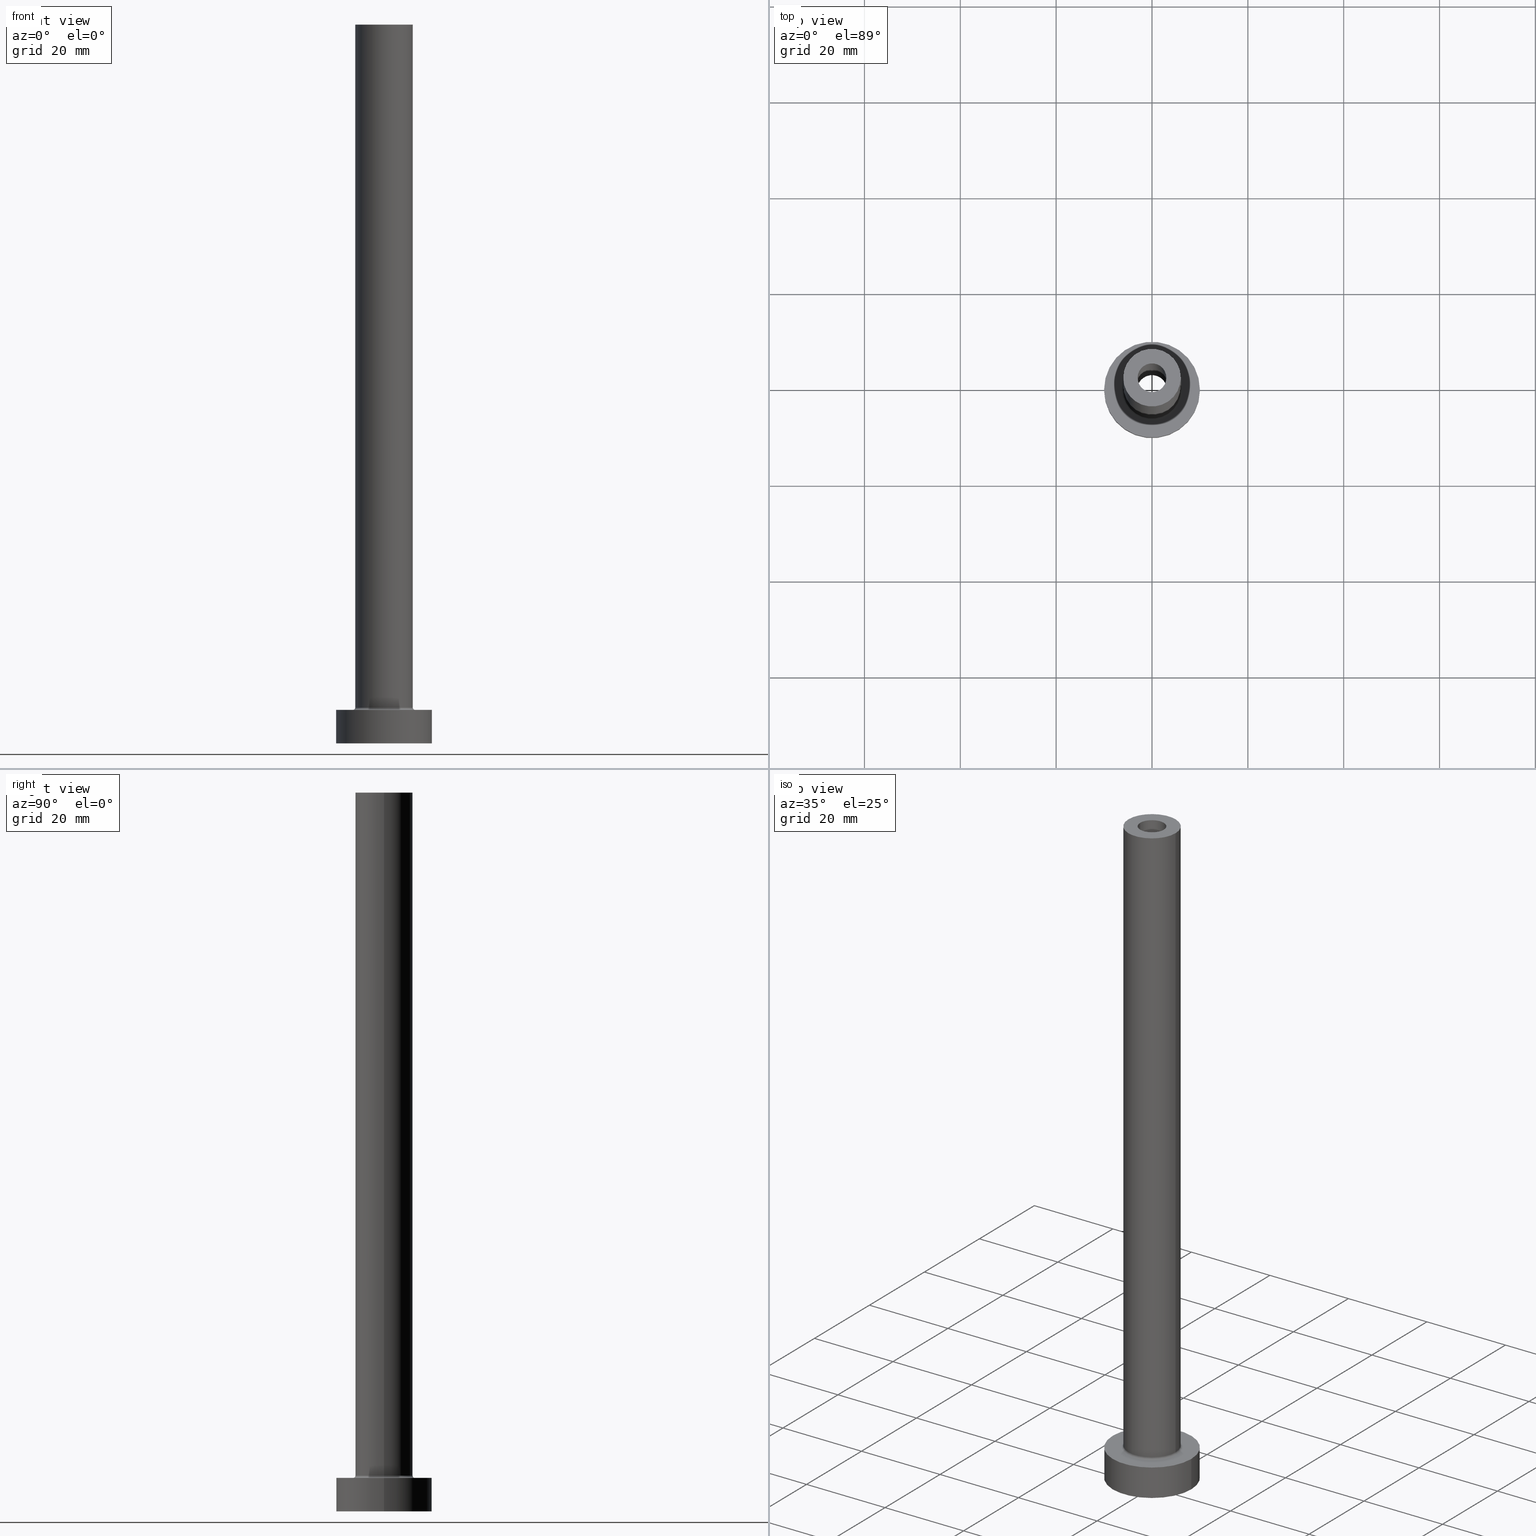
[diagram: canonical four-view strip — front | top / right | iso, engineering-drawing reading convention]
A machine part, canonical four-view strip (front | top / right | iso — engineering-drawing reading convention). The complete STEP part file that produces these views, byte-faithful:
ISO-10303-21;
HEADER;
FILE_DESCRIPTION (( 'STEP AP203' ),
    '1' );
FILE_NAME ('92c2.STEP',
    '2023-02-13T15:02:27',
    ( '' ),
    ( '' ),
    'SwSTEP 2.0',
    'SolidWorks 2019',
    '' );
FILE_SCHEMA (( 'CONFIG_CONTROL_DESIGN' ));
ENDSEC;

DATA;
#1 = ORIENTED_EDGE ( 'NONE', *, *, #417, .T. ) ;
#2 = EDGE_CURVE ( 'NONE', #17, #24, #199, .T. ) ;
#3 = CARTESIAN_POINT ( 'NONE',  ( 0.000000000000000000, 0.000000000000000000, 150.0000000000000000 ) ) ;
#4 = AXIS2_PLACEMENT_3D ( 'NONE', #210, #75, #453 ) ;
#5 = AXIS2_PLACEMENT_3D ( 'NONE', #127, #331, #120 ) ;
#6 = PLANE ( 'NONE',  #68 ) ;
#7 = ADVANCED_FACE ( 'NONE', ( #183 ), #149, .T. ) ;
#8 = ORIENTED_EDGE ( 'NONE', *, *, #178, .T. ) ;
#9 = FACE_OUTER_BOUND ( 'NONE', #53, .T. ) ;
#10 = EDGE_CURVE ( 'NONE', #397, #441, #392, .T. ) ;
#11 = CIRCLE ( 'NONE', #275, 6.000000000000000888 ) ;
#12 = PRODUCT ( '92c2', '92c2', '', ( #98 ) ) ;
#13 =( GEOMETRIC_REPRESENTATION_CONTEXT ( 3 ) GLOBAL_UNCERTAINTY_ASSIGNED_CONTEXT ( ( #192 ) ) GLOBAL_UNIT_ASSIGNED_CONTEXT ( ( #64, #411, #344 ) ) REPRESENTATION_CONTEXT ( 'NONE', 'WORKASPACE' ) );
#14 = ORIENTED_EDGE ( 'NONE', *, *, #104, .T. ) ;
#15 = CALENDAR_DATE ( 2023, 13, 2 ) ;
#16 = DIRECTION ( 'NONE',  ( 0.000000000000000000, 0.000000000000000000, 1.000000000000000000 ) ) ;
#17 = VERTEX_POINT ( 'NONE', #294 ) ;
#18 = EDGE_CURVE ( 'NONE', #21, #195, #239, .T. ) ;
#19 = COORDINATED_UNIVERSAL_TIME_OFFSET ( 1, 0, .AHEAD. ) ;
#20 = LINE ( 'NONE', #349, #119 ) ;
#21 = VERTEX_POINT ( 'NONE', #424 ) ;
#22 = AXIS2_PLACEMENT_3D ( 'NONE', #391, #291, #212 ) ;
#23 = CIRCLE ( 'NONE', #93, 3.000000000000000444 ) ;
#24 = VERTEX_POINT ( 'NONE', #247 ) ;
#25 = LOCAL_TIME ( 16, 2, 27.00000000000000000, #19 ) ;
#26 = EDGE_LOOP ( 'NONE', ( #303, #139, #202, #125 ) ) ;
#27 = PERSON_AND_ORGANIZATION ( #155, #328 ) ;
#28 = DIRECTION ( 'NONE',  ( 1.000000000000000000, 0.000000000000000000, -0.000000000000000000 ) ) ;
#29 = ADVANCED_FACE ( 'NONE', ( #108, #118 ), #30, .F. ) ;
#30 = PLANE ( 'NONE',  #320 ) ;
#31 = PERSON_AND_ORGANIZATION_ROLE ( 'creator' ) ;
#32 = DIRECTION ( 'NONE',  ( -0.000000000000000000, -0.000000000000000000, -1.000000000000000000 ) ) ;
#33 = ORIENTED_EDGE ( 'NONE', *, *, #2, .F. ) ;
#34 = AXIS2_PLACEMENT_3D ( 'NONE', #286, #38, #283 ) ;
#35 = CARTESIAN_POINT ( 'NONE',  ( 0.000000000000000000, 0.000000000000000000, 105.0000000000000000 ) ) ;
#36 = SECURITY_CLASSIFICATION ( '', '', #184 ) ;
#37 = PERSON_AND_ORGANIZATION ( #155, #328 ) ;
#38 = DIRECTION ( 'NONE',  ( -0.000000000000000000, -0.000000000000000000, -1.000000000000000000 ) ) ;
#39 = DIRECTION ( 'NONE',  ( 0.000000000000000000, -1.000000000000000000, 0.000000000000000000 ) ) ;
#40 = FACE_OUTER_BOUND ( 'NONE', #186, .T. ) ;
#41 = APPLICATION_CONTEXT ( 'configuration controlled 3d designs of mechanical parts and assemblies' ) ;
#42 = DIRECTION ( 'NONE',  ( 0.000000000000000000, 0.000000000000000000, -1.000000000000000000 ) ) ;
#43 = FACE_BOUND ( 'NONE', #228, .T. ) ;
#44 = CIRCLE ( 'NONE', #232, 6.500000000000000888 ) ;
#45 = VECTOR ( 'NONE', #442, 1000.000000000000000 ) ;
#46 = CYLINDRICAL_SURFACE ( 'NONE', #134, 3.150000000000000355 ) ;
#47 = DESIGN_CONTEXT ( 'detailed design', #207, 'design' ) ;
#48 = ORIENTED_EDGE ( 'NONE', *, *, #10, .T. ) ;
#49 = ADVANCED_FACE ( 'NONE', ( #322 ), #80, .F. ) ;
#50 = DIRECTION ( 'NONE',  ( 0.000000000000000000, 0.000000000000000000, 1.000000000000000000 ) ) ;
#51 = ORIENTED_EDGE ( 'NONE', *, *, #278, .T. ) ;
#52 = CARTESIAN_POINT ( 'NONE',  ( 0.000000000000000000, 0.000000000000000000, 150.0000000000000000 ) ) ;
#53 = EDGE_LOOP ( 'NONE', ( #48, #401 ) ) ;
#54 = EDGE_LOOP ( 'NONE', ( #33, #129, #8, #306 ) ) ;
#55 = APPROVAL_STATUS ( 'not_yet_approved' ) ;
#56 = AXIS2_PLACEMENT_3D ( 'NONE', #347, #60, #177 ) ;
#57 = DIRECTION ( 'NONE',  ( -0.000000000000000000, -0.000000000000000000, -1.000000000000000000 ) ) ;
#58 = VERTEX_POINT ( 'NONE', #115 ) ;
#59 = EDGE_CURVE ( 'NONE', #231, #73, #148, .T. ) ;
#60 = DIRECTION ( 'NONE',  ( 0.000000000000000000, 0.000000000000000000, 1.000000000000000000 ) ) ;
#61 = ORIENTED_EDGE ( 'NONE', *, *, #432, .F. ) ;
#62 = VECTOR ( 'NONE', #243, 1000.000000000000000 ) ;
#63 = FACE_OUTER_BOUND ( 'NONE', #437, .T. ) ;
#64 =( LENGTH_UNIT ( ) NAMED_UNIT ( * ) SI_UNIT ( .MILLI., .METRE. ) );
#65 = DIRECTION ( 'NONE',  ( 0.000000000000000000, 0.000000000000000000, 1.000000000000000000 ) ) ;
#66 = CLOSED_SHELL ( 'NONE', ( #346, #107, #403, #273, #225, #116, #262, #29, #7, #128, #169, #92, #383, #49 ) ) ;
#67 = AXIS2_PLACEMENT_3D ( 'NONE', #142, #181, #151 ) ;
#68 = AXIS2_PLACEMENT_3D ( 'NONE', #297, #221, #78 ) ;
#69 = CARTESIAN_POINT ( 'NONE',  ( -3.000000000000000444, 0.000000000000000000, 150.0000000000000000 ) ) ;
#70 = APPROVAL_DATE_TIME ( #152, #102 ) ;
#71 = CARTESIAN_POINT ( 'NONE',  ( 0.000000000000000000, 0.000000000000000000, 7.500000000000007105 ) ) ;
#72 = DIRECTION ( 'NONE',  ( -1.000000000000000000, 1.224646799147351482E-16, 0.000000000000000000 ) ) ;
#73 = VERTEX_POINT ( 'NONE', #242 ) ;
#74 = DIRECTION ( 'NONE',  ( -1.000000000000000000, 0.000000000000000000, 0.000000000000000000 ) ) ;
#75 = DIRECTION ( 'NONE',  ( -0.000000000000000000, -0.000000000000000000, -1.000000000000000000 ) ) ;
#76 = VECTOR ( 'NONE', #456, 1000.000000000000000 ) ;
#77 = CC_DESIGN_SECURITY_CLASSIFICATION ( #36, ( #110 ) ) ;
#78 = DIRECTION ( 'NONE',  ( 1.000000000000000000, 0.000000000000000000, -0.000000000000000000 ) ) ;
#79 = EDGE_CURVE ( 'NONE', #21, #58, #379, .T. ) ;
#80 = CYLINDRICAL_SURFACE ( 'NONE', #421, 3.000000000000000444 ) ;
#81 = FACE_OUTER_BOUND ( 'NONE', #197, .T. ) ;
#82 = ORIENTED_EDGE ( 'NONE', *, *, #96, .T. ) ;
#83 = AXIS2_PLACEMENT_3D ( 'NONE', #71, #230, #444 ) ;
#84 = DIRECTION ( 'NONE',  ( 0.000000000000000000, 0.000000000000000000, 1.000000000000000000 ) ) ;
#85 = VERTEX_POINT ( 'NONE', #400 ) ;
#86 = ORIENTED_EDGE ( 'NONE', *, *, #180, .T. ) ;
#87 = PERSON_AND_ORGANIZATION_ROLE ( 'design_owner' ) ;
#88 = DIRECTION ( 'NONE',  ( 0.000000000000000000, 0.000000000000000000, -1.000000000000000000 ) ) ;
#89 = EDGE_CURVE ( 'NONE', #17, #198, #156, .T. ) ;
#90 = ORIENTED_EDGE ( 'NONE', *, *, #222, .F. ) ;
#91 = DIRECTION ( 'NONE',  ( 1.000000000000000000, 0.000000000000000000, 0.000000000000000000 ) ) ;
#92 = ADVANCED_FACE ( 'NONE', ( #300 ), #46, .F. ) ;
#93 = AXIS2_PLACEMENT_3D ( 'NONE', #52, #196, #260 ) ;
#94 = LOCAL_TIME ( 16, 2, 27.00000000000000000, #377 ) ;
#95 = CARTESIAN_POINT ( 'NONE',  ( 0.000000000000000000, 0.000000000000000000, 7.000000000000000000 ) ) ;
#96 = EDGE_CURVE ( 'NONE', #176, #307, #23, .T. ) ;
#97 = ORIENTED_EDGE ( 'NONE', *, *, #417, .F. ) ;
#98 = MECHANICAL_CONTEXT ( 'NONE', #41, 'mechanical' ) ;
#99 = CC_DESIGN_PERSON_AND_ORGANIZATION_ASSIGNMENT ( #27, #460, ( #36 ) ) ;
#100 = DIRECTION ( 'NONE',  ( -0.000000000000000000, -0.000000000000000000, -1.000000000000000000 ) ) ;
#101 = APPROVAL_ROLE ( '' ) ;
#102 = APPROVAL ( #288, 'NEUR�EN�' ) ;
#103 = ORIENTED_EDGE ( 'NONE', *, *, #341, .F. ) ;
#104 = EDGE_CURVE ( 'NONE', #321, #366, #219, .T. ) ;
#105 = AXIS2_PLACEMENT_3D ( 'NONE', #388, #32, #74 ) ;
#106 = CC_DESIGN_PERSON_AND_ORGANIZATION_ASSIGNMENT ( #356, #31, ( #110 ) ) ;
#107 = ADVANCED_FACE ( 'NONE', ( #396 ), #334, .F. ) ;
#108 = FACE_BOUND ( 'NONE', #418, .T. ) ;
#109 = CIRCLE ( 'NONE', #133, 10.00000000000000000 ) ;
#110 = PRODUCT_DEFINITION_FORMATION_WITH_SPECIFIED_SOURCE ( 'LIBOVOLN�', '', #12, .NOT_KNOWN. ) ;
#111 = DIRECTION ( 'NONE',  ( 1.000000000000000000, 0.000000000000000000, -0.000000000000000000 ) ) ;
#112 = EDGE_LOOP ( 'NONE', ( #314, #365 ) ) ;
#113 = CARTESIAN_POINT ( 'NONE',  ( 0.000000000000000000, 0.000000000000000000, 7.000000000000000000 ) ) ;
#114 = CARTESIAN_POINT ( 'NONE',  ( 0.000000000000000000, 0.000000000000000000, 7.000000000000000000 ) ) ;
#115 = CARTESIAN_POINT ( 'NONE',  ( -6.500000000000000888, 7.960204194457796463E-16, 7.000000000000002665 ) ) ;
#116 = ADVANCED_FACE ( 'NONE', ( #81 ), #435, .T. ) ;
#117 = EDGE_CURVE ( 'NONE', #195, #21, #450, .T. ) ;
#118 = FACE_OUTER_BOUND ( 'NONE', #363, .T. ) ;
#119 = VECTOR ( 'NONE', #285, 1000.000000000000000 ) ;
#120 = DIRECTION ( 'NONE',  ( 1.000000000000000000, 0.000000000000000000, 0.000000000000000000 ) ) ;
#121 = FACE_BOUND ( 'NONE', #112, .T. ) ;
#122 = DIRECTION ( 'NONE',  ( -1.000000000000000000, 0.000000000000000000, 0.000000000000000000 ) ) ;
#123 = ORIENTED_EDGE ( 'NONE', *, *, #259, .F. ) ;
#124 = DIRECTION ( 'NONE',  ( -0.000000000000000000, -0.000000000000000000, -1.000000000000000000 ) ) ;
#125 = ORIENTED_EDGE ( 'NONE', *, *, #180, .F. ) ;
#126 = AXIS2_PLACEMENT_3D ( 'NONE', #358, #124, #264 ) ;
#127 = CARTESIAN_POINT ( 'NONE',  ( 0.000000000000000000, 0.000000000000000000, 7.500000000000007105 ) ) ;
#128 = ADVANCED_FACE ( 'NONE', ( #121, #9 ), #342, .T. ) ;
#129 = ORIENTED_EDGE ( 'NONE', *, *, #89, .T. ) ;
#130 = CARTESIAN_POINT ( 'NONE',  ( 0.000000000000000000, 0.000000000000000000, 0.000000000000000000 ) ) ;
#131 = ADVANCED_BREP_SHAPE_REPRESENTATION ( '92c2', ( #360, #305 ), #13 ) ;
#132 = APPROVAL ( #398, 'NEUR�EN�' ) ;
#133 = AXIS2_PLACEMENT_3D ( 'NONE', #113, #318, #382 ) ;
#134 = AXIS2_PLACEMENT_3D ( 'NONE', #226, #404, #122 ) ;
#135 = APPROVAL_DATE_TIME ( #236, #325 ) ;
#136 = LOCAL_TIME ( 16, 2, 27.00000000000000000, #188 ) ;
#137 = APPLICATION_PROTOCOL_DEFINITION ( 'international standard', 'config_control_design', 1994, #207 ) ;
#138 = DIRECTION ( 'NONE',  ( 1.000000000000000000, 0.000000000000000000, 0.000000000000000000 ) ) ;
#139 = ORIENTED_EDGE ( 'NONE', *, *, #258, .T. ) ;
#140 = AXIS2_PLACEMENT_3D ( 'NONE', #245, #386, #72 ) ;
#141 = EDGE_CURVE ( 'NONE', #441, #195, #235, .T. ) ;
#142 = CARTESIAN_POINT ( 'NONE',  ( 0.000000000000000000, 0.000000000000000000, 150.0000000000000000 ) ) ;
#143 = DIRECTION ( 'NONE',  ( 1.000000000000000000, 0.000000000000000000, 0.000000000000000000 ) ) ;
#144 = DIRECTION ( 'NONE',  ( 0.000000000000000000, 0.000000000000000000, -1.000000000000000000 ) ) ;
#145 = CARTESIAN_POINT ( 'NONE',  ( -10.00000000000000000, 0.000000000000000000, 7.000000000000000000 ) ) ;
#146 = PERSON_AND_ORGANIZATION_ROLE ( 'design_supplier' ) ;
#147 = CARTESIAN_POINT ( 'NONE',  ( 10.00000000000000000, 1.224646799147353256E-15, 0.000000000000000000 ) ) ;
#148 = CIRCLE ( 'NONE', #34, 3.150000000000000355 ) ;
#149 = CYLINDRICAL_SURFACE ( 'NONE', #4, 6.000000000000000888 ) ;
#150 = COORDINATED_UNIVERSAL_TIME_OFFSET ( 1, 0, .AHEAD. ) ;
#151 = DIRECTION ( 'NONE',  ( 1.000000000000000000, 0.000000000000000000, 0.000000000000000000 ) ) ;
#152 = DATE_AND_TIME ( #329, #136 ) ;
#153 = DIRECTION ( 'NONE',  ( 0.000000000000000000, 0.000000000000000000, 1.000000000000000000 ) ) ;
#154 = ORIENTED_EDGE ( 'NONE', *, *, #18, .T. ) ;
#155 = PERSON ( 'NEUR�EN�', 'NEUR�EN�', 'NEUR�EN�', ('NEUR�EN�'), ('NEUR�EN�'), ('NEUR�EN�') ) ;
#156 = LINE ( 'NONE', #434, #205 ) ;
#157 = CIRCLE ( 'NONE', #253, 3.000000000000000444 ) ;
#158 = DIRECTION ( 'NONE',  ( 0.000000000000000000, 0.000000000000000000, 1.000000000000000000 ) ) ;
#159 = CARTESIAN_POINT ( 'NONE',  ( -6.000000000000000888, 0.000000000000000000, 150.0000000000000000 ) ) ;
#160 = CARTESIAN_POINT ( 'NONE',  ( 0.000000000000000000, 0.000000000000000000, 113.9095454429505025 ) ) ;
#161 = ORIENTED_EDGE ( 'NONE', *, *, #89, .F. ) ;
#162 = VERTEX_POINT ( 'NONE', #446 ) ;
#163 = AXIS2_PLACEMENT_3D ( 'NONE', #319, #284, #292 ) ;
#164 = PRODUCT_DEFINITION_SHAPE ( 'NONE', 'NONE',  #448 ) ;
#165 = CC_DESIGN_APPROVAL ( #132, ( #110 ) ) ;
#166 = ORIENTED_EDGE ( 'NONE', *, *, #2, .T. ) ;
#167 = CARTESIAN_POINT ( 'NONE',  ( 0.000000000000000000, 0.000000000000000000, 105.0000000000000000 ) ) ;
#168 = ORIENTED_EDGE ( 'NONE', *, *, #402, .T. ) ;
#169 = ADVANCED_FACE ( 'NONE', ( #63 ), #214, .F. ) ;
#170 = CARTESIAN_POINT ( 'NONE',  ( 6.000000000000000888, 7.347880794884120722E-16, 150.0000000000000000 ) ) ;
#171 = ORIENTED_EDGE ( 'NONE', *, *, #254, .F. ) ;
#172 = ORIENTED_EDGE ( 'NONE', *, *, #282, .F. ) ;
#173 = CARTESIAN_POINT ( 'NONE',  ( 3.150000000000000355, 3.857637417314162196E-16, 105.0000000000000000 ) ) ;
#174 = ORIENTED_EDGE ( 'NONE', *, *, #10, .F. ) ;
#175 = CIRCLE ( 'NONE', #430, 3.000000000000000444 ) ;
#176 = VERTEX_POINT ( 'NONE', #375 ) ;
#177 = DIRECTION ( 'NONE',  ( 1.000000000000000000, 0.000000000000000000, 0.000000000000000000 ) ) ;
#178 = EDGE_CURVE ( 'NONE', #198, #409, #348, .T. ) ;
#179 = CIRCLE ( 'NONE', #263, 3.150000000000000355 ) ;
#180 = EDGE_CURVE ( 'NONE', #307, #321, #201, .T. ) ;
#181 = DIRECTION ( 'NONE',  ( 0.000000000000000000, 0.000000000000000000, 1.000000000000000000 ) ) ;
#182 = EDGE_CURVE ( 'NONE', #441, #397, #11, .T. ) ;
#183 = FACE_OUTER_BOUND ( 'NONE', #405, .T. ) ;
#184 = SECURITY_CLASSIFICATION_LEVEL ( 'unclassified' ) ;
#185 = AXIS2_PLACEMENT_3D ( 'NONE', #359, #42, #190 ) ;
#186 = EDGE_LOOP ( 'NONE', ( #316, #166 ) ) ;
#187 = CC_DESIGN_DATE_AND_TIME_ASSIGNMENT ( #438, #443, ( #448 ) ) ;
#188 = COORDINATED_UNIVERSAL_TIME_OFFSET ( 1, 0, .AHEAD. ) ;
#189 = FACE_OUTER_BOUND ( 'NONE', #256, .T. ) ;
#190 = DIRECTION ( 'NONE',  ( -1.000000000000000000, 0.000000000000000000, 0.000000000000000000 ) ) ;
#191 = AXIS2_PLACEMENT_3D ( 'NONE', #167, #50, #194 ) ;
#192 = UNCERTAINTY_MEASURE_WITH_UNIT (LENGTH_MEASURE( 1.000000000000000082E-05 ), #64, 'distance_accuracy_value', 'NONE');
#193 = LOCAL_TIME ( 16, 2, 27.00000000000000000, #150 ) ;
#194 = DIRECTION ( 'NONE',  ( 1.000000000000000000, 0.000000000000000000, 0.000000000000000000 ) ) ;
#195 = VERTEX_POINT ( 'NONE', #272 ) ;
#196 = DIRECTION ( 'NONE',  ( 0.000000000000000000, 0.000000000000000000, 1.000000000000000000 ) ) ;
#197 = EDGE_LOOP ( 'NONE', ( #161, #172, #223, #51 ) ) ;
#198 = VERTEX_POINT ( 'NONE', #147 ) ;
#199 = CIRCLE ( 'NONE', #22, 10.00000000000000000 ) ;
#200 = CALENDAR_DATE ( 2023, 13, 2 ) ;
#201 = LINE ( 'NONE', #324, #280 ) ;
#202 = ORIENTED_EDGE ( 'NONE', *, *, #104, .F. ) ;
#203 = CARTESIAN_POINT ( 'NONE',  ( 0.000000000000000000, 0.000000000000000000, 0.000000000000000000 ) ) ;
#204 = ORIENTED_EDGE ( 'NONE', *, *, #141, .F. ) ;
#205 = VECTOR ( 'NONE', #269, 1000.000000000000000 ) ;
#206 = DIRECTION ( 'NONE',  ( 1.000000000000000000, 0.000000000000000000, 0.000000000000000000 ) ) ;
#207 = APPLICATION_CONTEXT ( 'configuration controlled 3d designs of mechanical parts and assemblies' ) ;
#208 = VECTOR ( 'NONE', #100, 1000.000000000000000 ) ;
#209 = APPROVAL_PERSON_ORGANIZATION ( #268, #132, #353 ) ;
#210 = CARTESIAN_POINT ( 'NONE',  ( 0.000000000000000000, 0.000000000000000000, 150.0000000000000000 ) ) ;
#211 = SHAPE_DEFINITION_REPRESENTATION ( #164, #131 ) ;
#212 = DIRECTION ( 'NONE',  ( 1.000000000000000000, 0.000000000000000000, 0.000000000000000000 ) ) ;
#213 = CALENDAR_DATE ( 2023, 13, 2 ) ;
#214 = TOROIDAL_SURFACE ( 'NONE', #83, 6.500000000000000888, 0.5000000000000000000 ) ;
#215 = DIRECTION ( 'NONE',  ( 1.000000000000000000, 0.000000000000000000, 0.000000000000000000 ) ) ;
#216 = PLANE ( 'NONE',  #313 ) ;
#217 = CYLINDRICAL_SURFACE ( 'NONE', #185, 3.000000000000000444 ) ;
#218 = EDGE_CURVE ( 'NONE', #366, #321, #157, .T. ) ;
#219 = CIRCLE ( 'NONE', #191, 3.000000000000000444 ) ;
#220 = ORIENTED_EDGE ( 'NONE', *, *, #278, .F. ) ;
#221 = DIRECTION ( 'NONE',  ( 0.000000000000000000, 0.000000000000000000, 1.000000000000000000 ) ) ;
#222 = EDGE_CURVE ( 'NONE', #73, #231, #333, .T. ) ;
#223 = ORIENTED_EDGE ( 'NONE', *, *, #296, .T. ) ;
#224 = PERSON_AND_ORGANIZATION ( #155, #328 ) ;
#225 = ADVANCED_FACE ( 'NONE', ( #423 ), #410, .T. ) ;
#226 = CARTESIAN_POINT ( 'NONE',  ( 0.000000000000000000, 0.000000000000000000, 113.9095454429505025 ) ) ;
#227 = EDGE_LOOP ( 'NONE', ( #436, #376, #335, #351 ) ) ;
#228 = EDGE_LOOP ( 'NONE', ( #14, #343 ) ) ;
#229 = APPLICATION_PROTOCOL_DEFINITION ( 'international standard', 'config_control_design', 1994, #41 ) ;
#230 = DIRECTION ( 'NONE',  ( 0.000000000000000000, 0.000000000000000000, 1.000000000000000000 ) ) ;
#231 = VERTEX_POINT ( 'NONE', #378 ) ;
#232 = AXIS2_PLACEMENT_3D ( 'NONE', #95, #233, #206 ) ;
#233 = DIRECTION ( 'NONE',  ( -0.000000000000000000, -0.000000000000000000, -1.000000000000000000 ) ) ;
#234 = ORIENTED_EDGE ( 'NONE', *, *, #182, .F. ) ;
#235 = LINE ( 'NONE', #170, #415 ) ;
#236 = DATE_AND_TIME ( #200, #94 ) ;
#237 = CARTESIAN_POINT ( 'NONE',  ( 0.000000000000000000, 0.000000000000000000, 105.0000000000000000 ) ) ;
#238 = VERTEX_POINT ( 'NONE', #173 ) ;
#239 = CIRCLE ( 'NONE', #384, 6.000000000000000888 ) ;
#240 = CIRCLE ( 'NONE', #385, 0.5000000000000004441 ) ;
#241 = CC_DESIGN_PERSON_AND_ORGANIZATION_ASSIGNMENT ( #224, #340, ( #448 ) ) ;
#242 = CARTESIAN_POINT ( 'NONE',  ( -3.150000000000000355, 0.000000000000000000, 0.000000000000000000 ) ) ;
#243 = DIRECTION ( 'NONE',  ( -0.000000000000000000, -0.000000000000000000, -1.000000000000000000 ) ) ;
#244 = CIRCLE ( 'NONE', #361, 3.150000000000000355 ) ;
#245 = CARTESIAN_POINT ( 'NONE',  ( -6.500000000000000888, 7.960204194457796463E-16, 7.500000000000007105 ) ) ;
#246 = DIRECTION ( 'NONE',  ( 1.000000000000000000, 0.000000000000000000, -0.000000000000000000 ) ) ;
#247 = CARTESIAN_POINT ( 'NONE',  ( -10.00000000000000000, 0.000000000000000000, 7.000000000000000000 ) ) ;
#248 = PERSON_AND_ORGANIZATION ( #155, #328 ) ;
#249 = FACE_BOUND ( 'NONE', #266, .T. ) ;
#250 = ORIENTED_EDGE ( 'NONE', *, *, #258, .F. ) ;
#251 = DIRECTION ( 'NONE',  ( 1.000000000000000000, 0.000000000000000000, 0.000000000000000000 ) ) ;
#252 = DIRECTION ( 'NONE',  ( 1.000000000000000000, 0.000000000000000000, 0.000000000000000000 ) ) ;
#253 = AXIS2_PLACEMENT_3D ( 'NONE', #237, #315, #138 ) ;
#254 = EDGE_CURVE ( 'NONE', #85, #58, #44, .T. ) ;
#255 = CC_DESIGN_APPROVAL ( #325, ( #448 ) ) ;
#256 = EDGE_LOOP ( 'NONE', ( #399, #371, #171, #429 ) ) ;
#257 = FACE_OUTER_BOUND ( 'NONE', #26, .T. ) ;
#258 = EDGE_CURVE ( 'NONE', #176, #366, #20, .T. ) ;
#259 = EDGE_CURVE ( 'NONE', #397, #21, #419, .T. ) ;
#260 = DIRECTION ( 'NONE',  ( 1.000000000000000000, 0.000000000000000000, 0.000000000000000000 ) ) ;
#261 = ORIENTED_EDGE ( 'NONE', *, *, #330, .F. ) ;
#262 = ADVANCED_FACE ( 'NONE', ( #249, #40 ), #216, .T. ) ;
#263 = AXIS2_PLACEMENT_3D ( 'NONE', #35, #158, #251 ) ;
#264 = DIRECTION ( 'NONE',  ( -1.000000000000000000, 0.000000000000000000, 0.000000000000000000 ) ) ;
#265 = ORIENTED_EDGE ( 'NONE', *, *, #59, .F. ) ;
#266 = EDGE_LOOP ( 'NONE', ( #367, #1 ) ) ;
#267 = EDGE_LOOP ( 'NONE', ( #274, #380, #439, #61 ) ) ;
#268 = PERSON_AND_ORGANIZATION ( #155, #328 ) ;
#269 = DIRECTION ( 'NONE',  ( -0.000000000000000000, -0.000000000000000000, -1.000000000000000000 ) ) ;
#270 = ORIENTED_EDGE ( 'NONE', *, *, #259, .T. ) ;
#271 = DIRECTION ( 'NONE',  ( 1.000000000000000000, 0.000000000000000000, 0.000000000000000000 ) ) ;
#272 = CARTESIAN_POINT ( 'NONE',  ( 6.000000000000000888, 7.347880794884120722E-16, 7.500000000000007105 ) ) ;
#273 = ADVANCED_FACE ( 'NONE', ( #428 ), #394, .T. ) ;
#274 = ORIENTED_EDGE ( 'NONE', *, *, #330, .T. ) ;
#275 = AXIS2_PLACEMENT_3D ( 'NONE', #310, #458, #143 ) ;
#276 = DIRECTION ( 'NONE',  ( -0.000000000000000000, -0.000000000000000000, -1.000000000000000000 ) ) ;
#277 = ORIENTED_EDGE ( 'NONE', *, *, #117, .F. ) ;
#278 = EDGE_CURVE ( 'NONE', #409, #198, #459, .T. ) ;
#279 = PRODUCT_RELATED_PRODUCT_CATEGORY ( 'detail', '', ( #12 ) ) ;
#280 = VECTOR ( 'NONE', #454, 1000.000000000000000 ) ;
#281 = AXIS2_PLACEMENT_3D ( 'NONE', #381, #406, #91 ) ;
#282 = EDGE_CURVE ( 'NONE', #24, #17, #109, .T. ) ;
#283 = DIRECTION ( 'NONE',  ( 1.000000000000000000, 0.000000000000000000, 0.000000000000000000 ) ) ;
#284 = DIRECTION ( 'NONE',  ( 0.000000000000000000, 0.000000000000000000, 1.000000000000000000 ) ) ;
#285 = DIRECTION ( 'NONE',  ( 0.000000000000000000, 0.000000000000000000, -1.000000000000000000 ) ) ;
#286 = CARTESIAN_POINT ( 'NONE',  ( 0.000000000000000000, 0.000000000000000000, 0.000000000000000000 ) ) ;
#287 = AXIS2_PLACEMENT_3D ( 'NONE', #203, #276, #289 ) ;
#288 = APPROVAL_STATUS ( 'not_yet_approved' ) ;
#289 = DIRECTION ( 'NONE',  ( 1.000000000000000000, 0.000000000000000000, 0.000000000000000000 ) ) ;
#290 = LOCAL_TIME ( 16, 2, 27.00000000000000000, #457 ) ;
#291 = DIRECTION ( 'NONE',  ( 0.000000000000000000, 0.000000000000000000, 1.000000000000000000 ) ) ;
#292 = DIRECTION ( 'NONE',  ( 1.000000000000000000, 0.000000000000000000, 0.000000000000000000 ) ) ;
#293 = CALENDAR_DATE ( 2023, 13, 2 ) ;
#294 = CARTESIAN_POINT ( 'NONE',  ( 10.00000000000000000, 1.224646799147353256E-15, 7.000000000000000000 ) ) ;
#295 = ORIENTED_EDGE ( 'NONE', *, *, #141, .T. ) ;
#296 = EDGE_CURVE ( 'NONE', #24, #409, #451, .T. ) ;
#297 = CARTESIAN_POINT ( 'NONE',  ( 0.000000000000000000, 0.000000000000000000, 105.0000000000000000 ) ) ;
#298 = AXIS2_PLACEMENT_3D ( 'NONE', #370, #16, #28 ) ;
#299 = TOROIDAL_SURFACE ( 'NONE', #5, 6.500000000000000888, 0.5000000000000000000 ) ;
#300 = FACE_OUTER_BOUND ( 'NONE', #227, .T. ) ;
#301 = DIRECTION ( 'NONE',  ( 0.000000000000000000, 0.000000000000000000, -1.000000000000000000 ) ) ;
#302 = DIRECTION ( 'NONE',  ( -1.000000000000000000, 0.000000000000000000, 0.000000000000000000 ) ) ;
#303 = ORIENTED_EDGE ( 'NONE', *, *, #369, .T. ) ;
#304 = AXIS2_PLACEMENT_3D ( 'NONE', #433, #84, #337 ) ;
#305 = AXIS2_PLACEMENT_3D ( 'NONE', #130, #374, #271 ) ;
#306 = ORIENTED_EDGE ( 'NONE', *, *, #296, .F. ) ;
#307 = VERTEX_POINT ( 'NONE', #69 ) ;
#308 = LINE ( 'NONE', #317, #45 ) ;
#309 = EDGE_CURVE ( 'NONE', #238, #231, #352, .T. ) ;
#310 = CARTESIAN_POINT ( 'NONE',  ( 0.000000000000000000, 0.000000000000000000, 150.0000000000000000 ) ) ;
#311 = CC_DESIGN_PERSON_AND_ORGANIZATION_ASSIGNMENT ( #445, #87, ( #12 ) ) ;
#312 = CARTESIAN_POINT ( 'NONE',  ( -6.000000000000000888, 0.000000000000000000, 150.0000000000000000 ) ) ;
#313 = AXIS2_PLACEMENT_3D ( 'NONE', #114, #357, #246 ) ;
#314 = ORIENTED_EDGE ( 'NONE', *, *, #369, .F. ) ;
#315 = DIRECTION ( 'NONE',  ( 0.000000000000000000, 0.000000000000000000, 1.000000000000000000 ) ) ;
#316 = ORIENTED_EDGE ( 'NONE', *, *, #282, .T. ) ;
#317 = CARTESIAN_POINT ( 'NONE',  ( -3.150000000000000355, 0.000000000000000000, 113.9095454429505025 ) ) ;
#318 = DIRECTION ( 'NONE',  ( 0.000000000000000000, 0.000000000000000000, 1.000000000000000000 ) ) ;
#319 = CARTESIAN_POINT ( 'NONE',  ( 0.000000000000000000, 0.000000000000000000, 0.000000000000000000 ) ) ;
#320 = AXIS2_PLACEMENT_3D ( 'NONE', #389, #395, #111 ) ;
#321 = VERTEX_POINT ( 'NONE', #326 ) ;
#322 = FACE_OUTER_BOUND ( 'NONE', #461, .T. ) ;
#323 = CARTESIAN_POINT ( 'NONE',  ( 3.150000000000000355, 3.857637417314162196E-16, 113.9095454429505025 ) ) ;
#324 = CARTESIAN_POINT ( 'NONE',  ( -3.000000000000000444, 0.000000000000000000, 150.0000000000000000 ) ) ;
#325 = APPROVAL ( #55, 'NEUR�EN�' ) ;
#326 = CARTESIAN_POINT ( 'NONE',  ( -3.000000000000000444, 0.000000000000000000, 105.0000000000000000 ) ) ;
#327 = APPROVAL_DATE_TIME ( #422, #132 ) ;
#328 = ORGANIZATION ( 'NEUR�EN�', 'NEUR�EN�', '' ) ;
#329 = CALENDAR_DATE ( 2023, 13, 2 ) ;
#330 = EDGE_CURVE ( 'NONE', #162, #238, #244, .T. ) ;
#331 = DIRECTION ( 'NONE',  ( 0.000000000000000000, 0.000000000000000000, 1.000000000000000000 ) ) ;
#332 = CARTESIAN_POINT ( 'NONE',  ( 3.000000000000000444, 3.673940397442059868E-16, 105.0000000000000000 ) ) ;
#333 = CIRCLE ( 'NONE', #287, 3.150000000000000355 ) ;
#334 = CYLINDRICAL_SURFACE ( 'NONE', #350, 3.150000000000000355 ) ;
#335 = ORIENTED_EDGE ( 'NONE', *, *, #432, .T. ) ;
#336 = CARTESIAN_POINT ( 'NONE',  ( -10.00000000000000000, 0.000000000000000000, 0.000000000000000000 ) ) ;
#337 = DIRECTION ( 'NONE',  ( 1.000000000000000000, 0.000000000000000000, 0.000000000000000000 ) ) ;
#338 = CC_DESIGN_APPROVAL ( #102, ( #36 ) ) ;
#339 = ORIENTED_EDGE ( 'NONE', *, *, #178, .F. ) ;
#340 = PERSON_AND_ORGANIZATION_ROLE ( 'creator' ) ;
#341 = EDGE_CURVE ( 'NONE', #238, #162, #179, .T. ) ;
#342 = PLANE ( 'NONE',  #298 ) ;
#343 = ORIENTED_EDGE ( 'NONE', *, *, #218, .T. ) ;
#344 =( NAMED_UNIT ( * ) SI_UNIT ( $, .STERADIAN. ) SOLID_ANGLE_UNIT ( ) );
#345 = DIRECTION ( 'NONE',  ( -0.000000000000000000, -0.000000000000000000, -1.000000000000000000 ) ) ;
#346 = ADVANCED_FACE ( 'NONE', ( #257 ), #217, .F. ) ;
#347 = CARTESIAN_POINT ( 'NONE',  ( 0.000000000000000000, 0.000000000000000000, 0.000000000000000000 ) ) ;
#348 = CIRCLE ( 'NONE', #56, 10.00000000000000000 ) ;
#349 = CARTESIAN_POINT ( 'NONE',  ( 3.000000000000000444, 3.673940397442059868E-16, 150.0000000000000000 ) ) ;
#350 = AXIS2_PLACEMENT_3D ( 'NONE', #160, #88, #302 ) ;
#351 = ORIENTED_EDGE ( 'NONE', *, *, #222, .T. ) ;
#352 = LINE ( 'NONE', #323, #76 ) ;
#353 = APPROVAL_ROLE ( '' ) ;
#354 = DIRECTION ( 'NONE',  ( 0.000000000000000000, 0.000000000000000000, 1.000000000000000000 ) ) ;
#355 = ORIENTED_EDGE ( 'NONE', *, *, #117, .T. ) ;
#356 = PERSON_AND_ORGANIZATION ( #155, #328 ) ;
#357 = DIRECTION ( 'NONE',  ( 0.000000000000000000, 0.000000000000000000, 1.000000000000000000 ) ) ;
#358 = CARTESIAN_POINT ( 'NONE',  ( 0.000000000000000000, 0.000000000000000000, 7.000000000000000000 ) ) ;
#359 = CARTESIAN_POINT ( 'NONE',  ( 0.000000000000000000, 0.000000000000000000, 150.0000000000000000 ) ) ;
#360 = MANIFOLD_SOLID_BREP ( 'Odebrat vysunut�m4', #66 ) ;
#361 = AXIS2_PLACEMENT_3D ( 'NONE', #449, #65, #427 ) ;
#362 = APPROVAL_PERSON_ORGANIZATION ( #368, #325, #101 ) ;
#363 = EDGE_LOOP ( 'NONE', ( #220, #339 ) ) ;
#364 = CARTESIAN_POINT ( 'NONE',  ( 6.500000000000000888, 0.000000000000000000, 7.500000000000007105 ) ) ;
#365 = ORIENTED_EDGE ( 'NONE', *, *, #96, .F. ) ;
#366 = VERTEX_POINT ( 'NONE', #332 ) ;
#367 = ORIENTED_EDGE ( 'NONE', *, *, #254, .T. ) ;
#368 = PERSON_AND_ORGANIZATION ( #155, #328 ) ;
#369 = EDGE_CURVE ( 'NONE', #307, #176, #175, .T. ) ;
#370 = CARTESIAN_POINT ( 'NONE',  ( 0.000000000000000000, 0.000000000000000000, 150.0000000000000000 ) ) ;
#371 = ORIENTED_EDGE ( 'NONE', *, *, #79, .T. ) ;
#372 = CC_DESIGN_DATE_AND_TIME_ASSIGNMENT ( #387, #425, ( #36 ) ) ;
#373 = ORIENTED_EDGE ( 'NONE', *, *, #79, .F. ) ;
#374 = DIRECTION ( 'NONE',  ( 0.000000000000000000, 0.000000000000000000, 1.000000000000000000 ) ) ;
#375 = CARTESIAN_POINT ( 'NONE',  ( 3.000000000000000444, 3.673940397442059868E-16, 150.0000000000000000 ) ) ;
#376 = ORIENTED_EDGE ( 'NONE', *, *, #341, .T. ) ;
#377 = COORDINATED_UNIVERSAL_TIME_OFFSET ( 1, 0, .AHEAD. ) ;
#378 = CARTESIAN_POINT ( 'NONE',  ( 3.150000000000000355, 3.857637417314162196E-16, 0.000000000000000000 ) ) ;
#379 = CIRCLE ( 'NONE', #140, 0.5000000000000004441 ) ;
#380 = ORIENTED_EDGE ( 'NONE', *, *, #309, .T. ) ;
#381 = CARTESIAN_POINT ( 'NONE',  ( 0.000000000000000000, 0.000000000000000000, 7.000000000000000000 ) ) ;
#382 = DIRECTION ( 'NONE',  ( 1.000000000000000000, 0.000000000000000000, 0.000000000000000000 ) ) ;
#383 = ADVANCED_FACE ( 'NONE', ( #43, #393 ), #6, .F. ) ;
#384 = AXIS2_PLACEMENT_3D ( 'NONE', #420, #354, #215 ) ;
#385 = AXIS2_PLACEMENT_3D ( 'NONE', #364, #39, #301 ) ;
#386 = DIRECTION ( 'NONE',  ( 1.224646799147353207E-16, 1.000000000000000000, -0.000000000000000000 ) ) ;
#387 = DATE_AND_TIME ( #293, #193 ) ;
#388 = CARTESIAN_POINT ( 'NONE',  ( 0.000000000000000000, 0.000000000000000000, 150.0000000000000000 ) ) ;
#389 = CARTESIAN_POINT ( 'NONE',  ( 0.000000000000000000, 0.000000000000000000, 0.000000000000000000 ) ) ;
#390 = APPROVAL_ROLE ( '' ) ;
#391 = CARTESIAN_POINT ( 'NONE',  ( 0.000000000000000000, 0.000000000000000000, 7.000000000000000000 ) ) ;
#392 = CIRCLE ( 'NONE', #67, 6.000000000000000888 ) ;
#393 = FACE_OUTER_BOUND ( 'NONE', #447, .T. ) ;
#394 = CYLINDRICAL_SURFACE ( 'NONE', #105, 6.000000000000000888 ) ;
#395 = DIRECTION ( 'NONE',  ( 0.000000000000000000, 0.000000000000000000, 1.000000000000000000 ) ) ;
#396 = FACE_OUTER_BOUND ( 'NONE', #267, .T. ) ;
#397 = VERTEX_POINT ( 'NONE', #159 ) ;
#398 = APPROVAL_STATUS ( 'not_yet_approved' ) ;
#399 = ORIENTED_EDGE ( 'NONE', *, *, #18, .F. ) ;
#400 = CARTESIAN_POINT ( 'NONE',  ( 6.500000000000000888, 0.000000000000000000, 7.000000000000002665 ) ) ;
#401 = ORIENTED_EDGE ( 'NONE', *, *, #182, .T. ) ;
#402 = EDGE_CURVE ( 'NONE', #195, #85, #240, .T. ) ;
#403 = ADVANCED_FACE ( 'NONE', ( #189 ), #299, .F. ) ;
#404 = DIRECTION ( 'NONE',  ( 0.000000000000000000, 0.000000000000000000, -1.000000000000000000 ) ) ;
#405 = EDGE_LOOP ( 'NONE', ( #204, #174, #270, #154 ) ) ;
#406 = DIRECTION ( 'NONE',  ( -0.000000000000000000, -0.000000000000000000, -1.000000000000000000 ) ) ;
#407 = AXIS2_PLACEMENT_3D ( 'NONE', #408, #345, #412 ) ;
#408 = CARTESIAN_POINT ( 'NONE',  ( 0.000000000000000000, 0.000000000000000000, 7.000000000000000000 ) ) ;
#409 = VERTEX_POINT ( 'NONE', #336 ) ;
#410 = CYLINDRICAL_SURFACE ( 'NONE', #407, 10.00000000000000000 ) ;
#411 =( NAMED_UNIT ( * ) PLANE_ANGLE_UNIT ( ) SI_UNIT ( $, .RADIAN. ) );
#412 = DIRECTION ( 'NONE',  ( -1.000000000000000000, 0.000000000000000000, 0.000000000000000000 ) ) ;
#413 = ORIENTED_EDGE ( 'NONE', *, *, #218, .F. ) ;
#414 = CARTESIAN_POINT ( 'NONE',  ( 6.000000000000000888, 7.347880794884120722E-16, 150.0000000000000000 ) ) ;
#415 = VECTOR ( 'NONE', #57, 1000.000000000000000 ) ;
#416 = APPROVAL_PERSON_ORGANIZATION ( #248, #102, #390 ) ;
#417 = EDGE_CURVE ( 'NONE', #58, #85, #431, .T. ) ;
#418 = EDGE_LOOP ( 'NONE', ( #90, #265 ) ) ;
#419 = LINE ( 'NONE', #312, #208 ) ;
#420 = CARTESIAN_POINT ( 'NONE',  ( 0.000000000000000000, 0.000000000000000000, 7.500000000000007105 ) ) ;
#421 = AXIS2_PLACEMENT_3D ( 'NONE', #455, #144, #426 ) ;
#422 = DATE_AND_TIME ( #213, #290 ) ;
#423 = FACE_OUTER_BOUND ( 'NONE', #54, .T. ) ;
#424 = CARTESIAN_POINT ( 'NONE',  ( -6.000000000000000888, 0.000000000000000000, 7.500000000000007105 ) ) ;
#425 = DATE_TIME_ROLE ( 'classification_date' ) ;
#426 = DIRECTION ( 'NONE',  ( -1.000000000000000000, 0.000000000000000000, 0.000000000000000000 ) ) ;
#427 = DIRECTION ( 'NONE',  ( 1.000000000000000000, 0.000000000000000000, 0.000000000000000000 ) ) ;
#428 = FACE_OUTER_BOUND ( 'NONE', #440, .T. ) ;
#429 = ORIENTED_EDGE ( 'NONE', *, *, #402, .F. ) ;
#430 = AXIS2_PLACEMENT_3D ( 'NONE', #3, #153, #252 ) ;
#431 = CIRCLE ( 'NONE', #281, 6.500000000000000888 ) ;
#432 = EDGE_CURVE ( 'NONE', #162, #73, #308, .T. ) ;
#433 = CARTESIAN_POINT ( 'NONE',  ( 0.000000000000000000, 0.000000000000000000, 7.500000000000007105 ) ) ;
#434 = CARTESIAN_POINT ( 'NONE',  ( 10.00000000000000000, 1.224646799147353256E-15, 7.000000000000000000 ) ) ;
#435 = CYLINDRICAL_SURFACE ( 'NONE', #126, 10.00000000000000000 ) ;
#436 = ORIENTED_EDGE ( 'NONE', *, *, #309, .F. ) ;
#437 = EDGE_LOOP ( 'NONE', ( #373, #277, #168, #97 ) ) ;
#438 = DATE_AND_TIME ( #15, #25 ) ;
#439 = ORIENTED_EDGE ( 'NONE', *, *, #59, .T. ) ;
#440 = EDGE_LOOP ( 'NONE', ( #234, #295, #355, #123 ) ) ;
#441 = VERTEX_POINT ( 'NONE', #414 ) ;
#442 = DIRECTION ( 'NONE',  ( 0.000000000000000000, 0.000000000000000000, -1.000000000000000000 ) ) ;
#443 = DATE_TIME_ROLE ( 'creation_date' ) ;
#444 = DIRECTION ( 'NONE',  ( 1.000000000000000000, 0.000000000000000000, 0.000000000000000000 ) ) ;
#445 = PERSON_AND_ORGANIZATION ( #155, #328 ) ;
#446 = CARTESIAN_POINT ( 'NONE',  ( -3.150000000000000355, 0.000000000000000000, 105.0000000000000000 ) ) ;
#447 = EDGE_LOOP ( 'NONE', ( #261, #103 ) ) ;
#448 = PRODUCT_DEFINITION ( 'NEZN�M�', '', #110, #47 ) ;
#449 = CARTESIAN_POINT ( 'NONE',  ( 0.000000000000000000, 0.000000000000000000, 105.0000000000000000 ) ) ;
#450 = CIRCLE ( 'NONE', #304, 6.000000000000000888 ) ;
#451 = LINE ( 'NONE', #145, #62 ) ;
#452 = CC_DESIGN_PERSON_AND_ORGANIZATION_ASSIGNMENT ( #37, #146, ( #110 ) ) ;
#453 = DIRECTION ( 'NONE',  ( -1.000000000000000000, 0.000000000000000000, 0.000000000000000000 ) ) ;
#454 = DIRECTION ( 'NONE',  ( 0.000000000000000000, 0.000000000000000000, -1.000000000000000000 ) ) ;
#455 = CARTESIAN_POINT ( 'NONE',  ( 0.000000000000000000, 0.000000000000000000, 150.0000000000000000 ) ) ;
#456 = DIRECTION ( 'NONE',  ( 0.000000000000000000, 0.000000000000000000, -1.000000000000000000 ) ) ;
#457 = COORDINATED_UNIVERSAL_TIME_OFFSET ( 1, 0, .AHEAD. ) ;
#458 = DIRECTION ( 'NONE',  ( 0.000000000000000000, 0.000000000000000000, 1.000000000000000000 ) ) ;
#459 = CIRCLE ( 'NONE', #163, 10.00000000000000000 ) ;
#460 = PERSON_AND_ORGANIZATION_ROLE ( 'classification_officer' ) ;
#461 = EDGE_LOOP ( 'NONE', ( #250, #82, #86, #413 ) ) ;
ENDSEC;
END-ISO-10303-21;
